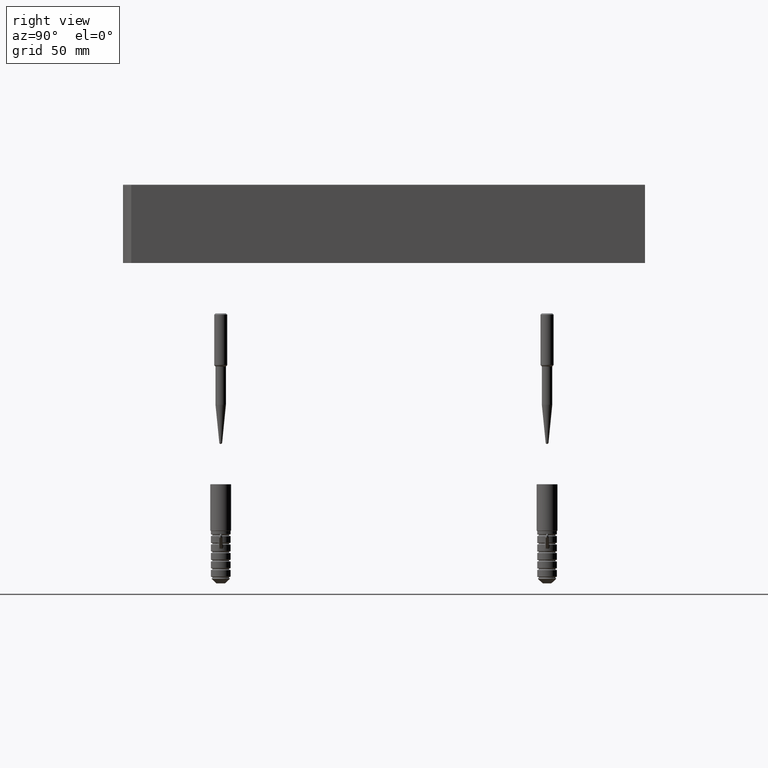
[diagram: clean part render]
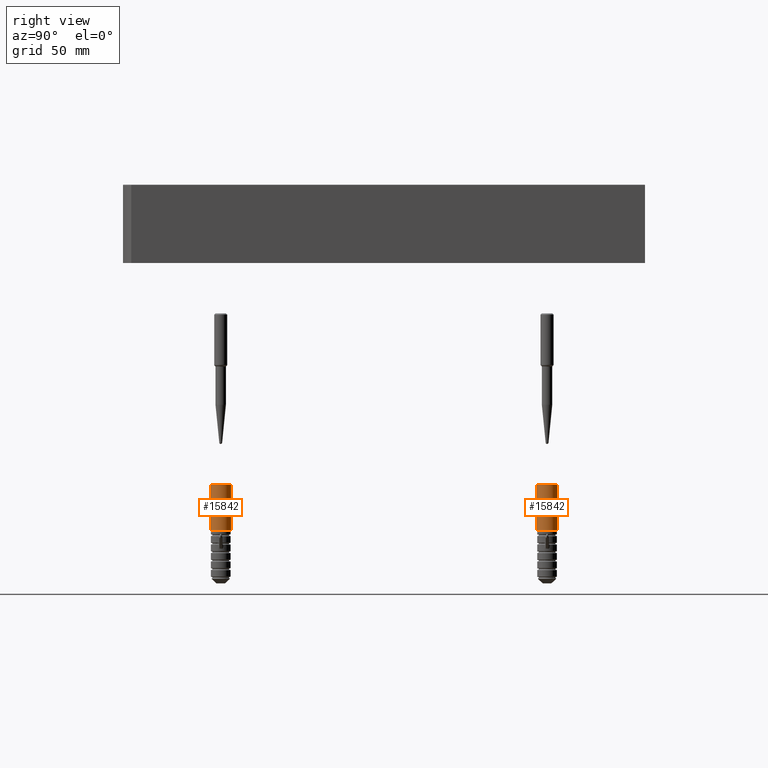
[diagram: same view with one multi-face feature highlighted, each face labeled with its STEP entity id]
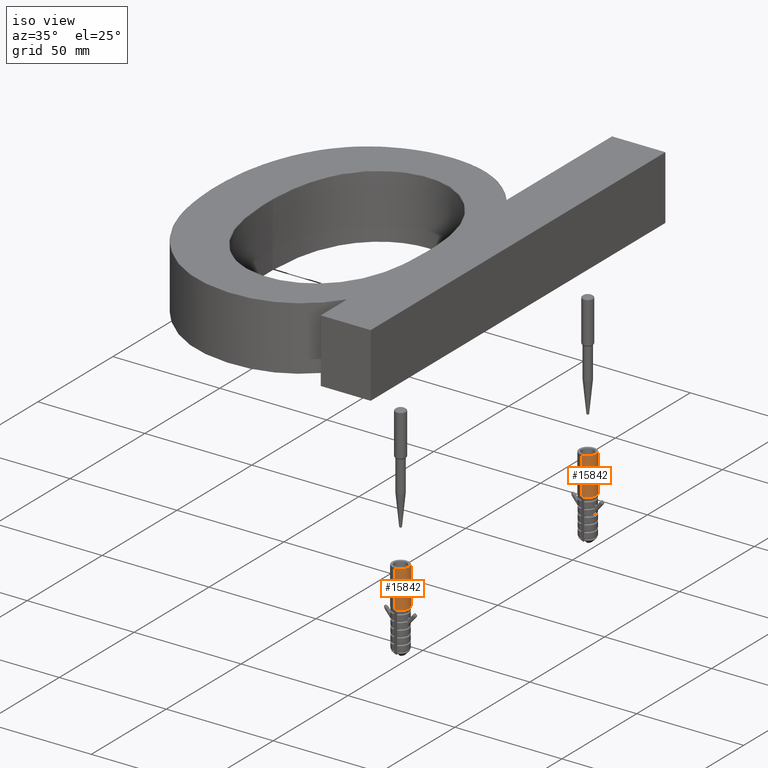
[diagram: same view with one multi-face feature highlighted, each face labeled with its STEP entity id]
A machine part, right view. The highlighted faces form ONE feature: a constant-radius fillet chain: 2 tangent blend faces with common blend radius 4 mm. The faces share edges in the B-rep.
A second angle (iso view) of the same feature is appended — it is thin or edge-on in the first view.
Their STEP definitions:
[1] entity #15842 (Cylinder):
#14 = CARTESIAN_POINT ( 'NONE',  ( 4.000000000000000000, 4.898587196589412800E-016, -38.00000000000000000 ) ) ;
#256 = CIRCLE ( 'NONE', #16029, 4.000000000000000000 ) ;
#1041 = EDGE_CURVE ( 'NONE', #29122, #21773, #5476, .T. ) ;
#1866 = EDGE_CURVE ( 'NONE', #19875, #27331, #23360, .T. ) ;
#2496 = VERTEX_POINT ( 'NONE', #28264 ) ;
#3447 = DIRECTION ( 'NONE',  ( -0.0000000000000000000, -0.0000000000000000000, -1.000000000000000000 ) ) ;
#3753 = ORIENTED_EDGE ( 'NONE', *, *, #3777, .F. ) ;
#3777 = EDGE_CURVE ( 'NONE', #2496, #19875, #26778, .T. ) ;
#4207 = ORIENTED_EDGE ( 'NONE', *, *, #23073, .T. ) ;
#4613 = CARTESIAN_POINT ( 'NONE',  ( 0.0000000000000000000, 0.0000000000000000000, -17.80000000000000100 ) ) ;
#4688 = CARTESIAN_POINT ( 'NONE',  ( 3.879513447468139200, 0.9743589743589745600, -17.80000000000000100 ) ) ;
#4702 = DIRECTION ( 'NONE',  ( -0.0000000000000000000, -0.0000000000000000000, -1.000000000000000000 ) ) ;
#4907 = DIRECTION ( 'NONE',  ( -0.0000000000000000000, -0.0000000000000000000, -1.000000000000000000 ) ) ;
#4951 = EDGE_CURVE ( 'NONE', #20730, #2496, #256, .T. ) ;
#4993 = DIRECTION ( 'NONE',  ( 1.000000000000000000, 0.0000000000000000000, 0.0000000000000000000 ) ) ;
#5161 = ORIENTED_EDGE ( 'NONE', *, *, #1866, .F. ) ;
#5476 = CIRCLE ( 'NONE', #20674, 4.000000000000000000 ) ;
#6446 = ORIENTED_EDGE ( 'NONE', *, *, #1041, .T. ) ;
#6591 = AXIS2_PLACEMENT_3D ( 'NONE', #27411, #4907, #20622 ) ;
#6996 = DIRECTION ( 'NONE',  ( -1.000000000000000000, 0.0000000000000000000, 0.0000000000000000000 ) ) ;
#7376 = CARTESIAN_POINT ( 'NONE',  ( 0.0000000000000000000, 0.0000000000000000000, -17.80000000000000100 ) ) ;
#8018 = CARTESIAN_POINT ( 'NONE',  ( -4.000000000000000000, 0.0000000000000000000, -38.00000000000000000 ) ) ;
#8551 = AXIS2_PLACEMENT_3D ( 'NONE', #27659, #25477, #16548 ) ;
#10162 = VECTOR ( 'NONE', #3447, 1000.000000000000000 ) ;
#12024 = VECTOR ( 'NONE', #4702, 1000.000000000000000 ) ;
#13160 = ORIENTED_EDGE ( 'NONE', *, *, #4951, .F. ) ;
#14833 = LINE ( 'NONE', #14, #12024 ) ;
#14934 = CARTESIAN_POINT ( 'NONE',  ( 4.000000000000000000, 4.898587196589412800E-016, -0.1999999999999987900 ) ) ;
#15616 = DIRECTION ( 'NONE',  ( -1.000000000000000000, 0.0000000000000000000, 0.0000000000000000000 ) ) ;
#15842 = ADVANCED_FACE ( 'NONE', ( #28040 ), #16748, .T. ) ;
#16029 = AXIS2_PLACEMENT_3D ( 'NONE', #4613, #18085, #15616 ) ;
#16548 = DIRECTION ( 'NONE',  ( -1.000000000000000000, 0.0000000000000000000, 0.0000000000000000000 ) ) ;
#16590 = DIRECTION ( 'NONE',  ( -0.0000000000000000000, -0.0000000000000000000, -1.000000000000000000 ) ) ;
#16748 = CYLINDRICAL_SURFACE ( 'NONE', #8551, 4.000000000000000000 ) ;
#18085 = DIRECTION ( 'NONE',  ( -0.0000000000000000000, -0.0000000000000000000, -1.000000000000000000 ) ) ;
#19190 = EDGE_CURVE ( 'NONE', #29122, #20730, #25990, .T. ) ;
#19512 = CARTESIAN_POINT ( 'NONE',  ( -4.000000000000000000, 0.0000000000000000000, -0.1999999999999987900 ) ) ;
#19875 = VERTEX_POINT ( 'NONE', #4688 ) ;
#20622 = DIRECTION ( 'NONE',  ( -1.000000000000000000, 0.0000000000000000000, 0.0000000000000000000 ) ) ;
#20674 = AXIS2_PLACEMENT_3D ( 'NONE', #25232, #16590, #4993 ) ;
#20730 = VERTEX_POINT ( 'NONE', #26556 ) ;
#21773 = VERTEX_POINT ( 'NONE', #14934 ) ;
#23073 = EDGE_CURVE ( 'NONE', #21773, #27331, #14833, .T. ) ;
#23360 = CIRCLE ( 'NONE', #26156, 4.000000000000000000 ) ;
#23762 = CARTESIAN_POINT ( 'NONE',  ( 4.000000000000000000, 4.898587196589412800E-016, -17.80000000000000100 ) ) ;
#25232 = CARTESIAN_POINT ( 'NONE',  ( 0.0000000000000000000, 0.0000000000000000000, -0.1999999999999987900 ) ) ;
#25477 = DIRECTION ( 'NONE',  ( -0.0000000000000000000, -0.0000000000000000000, -1.000000000000000000 ) ) ;
#25990 = LINE ( 'NONE', #8018, #10162 ) ;
#26156 = AXIS2_PLACEMENT_3D ( 'NONE', #7376, #27539, #6996 ) ;
#26200 = ORIENTED_EDGE ( 'NONE', *, *, #19190, .F. ) ;
#26556 = CARTESIAN_POINT ( 'NONE',  ( -4.000000000000000000, 0.0000000000000000000, -17.80000000000000100 ) ) ;
#26778 = CIRCLE ( 'NONE', #6591, 4.000000000000000000 ) ;
#27226 = EDGE_LOOP ( 'NONE', ( #6446, #4207, #5161, #3753, #13160, #26200 ) ) ;
#27331 = VERTEX_POINT ( 'NONE', #23762 ) ;
#27411 = CARTESIAN_POINT ( 'NONE',  ( 0.0000000000000000000, 0.0000000000000000000, -17.80000000000000100 ) ) ;
#27539 = DIRECTION ( 'NONE',  ( -0.0000000000000000000, -0.0000000000000000000, -1.000000000000000000 ) ) ;
#27659 = CARTESIAN_POINT ( 'NONE',  ( 0.0000000000000000000, 0.0000000000000000000, -38.00000000000000000 ) ) ;
#28040 = FACE_OUTER_BOUND ( 'NONE', #27226, .T. ) ;
#28264 = CARTESIAN_POINT ( 'NONE',  ( -3.879513447468139600, 0.9743589743589747800, -17.80000000000000100 ) ) ;
#29122 = VERTEX_POINT ( 'NONE', #19512 ) ;
[2] entity #15842 (Cylinder):
#14 = CARTESIAN_POINT ( 'NONE',  ( 4.000000000000000000, 4.898587196589412800E-016, -38.00000000000000000 ) ) ;
#256 = CIRCLE ( 'NONE', #16029, 4.000000000000000000 ) ;
#1041 = EDGE_CURVE ( 'NONE', #29122, #21773, #5476, .T. ) ;
#1866 = EDGE_CURVE ( 'NONE', #19875, #27331, #23360, .T. ) ;
#2496 = VERTEX_POINT ( 'NONE', #28264 ) ;
#3447 = DIRECTION ( 'NONE',  ( -0.0000000000000000000, -0.0000000000000000000, -1.000000000000000000 ) ) ;
#3753 = ORIENTED_EDGE ( 'NONE', *, *, #3777, .F. ) ;
#3777 = EDGE_CURVE ( 'NONE', #2496, #19875, #26778, .T. ) ;
#4207 = ORIENTED_EDGE ( 'NONE', *, *, #23073, .T. ) ;
#4613 = CARTESIAN_POINT ( 'NONE',  ( 0.0000000000000000000, 0.0000000000000000000, -17.80000000000000100 ) ) ;
#4688 = CARTESIAN_POINT ( 'NONE',  ( 3.879513447468139200, 0.9743589743589745600, -17.80000000000000100 ) ) ;
#4702 = DIRECTION ( 'NONE',  ( -0.0000000000000000000, -0.0000000000000000000, -1.000000000000000000 ) ) ;
#4907 = DIRECTION ( 'NONE',  ( -0.0000000000000000000, -0.0000000000000000000, -1.000000000000000000 ) ) ;
#4951 = EDGE_CURVE ( 'NONE', #20730, #2496, #256, .T. ) ;
#4993 = DIRECTION ( 'NONE',  ( 1.000000000000000000, 0.0000000000000000000, 0.0000000000000000000 ) ) ;
#5161 = ORIENTED_EDGE ( 'NONE', *, *, #1866, .F. ) ;
#5476 = CIRCLE ( 'NONE', #20674, 4.000000000000000000 ) ;
#6446 = ORIENTED_EDGE ( 'NONE', *, *, #1041, .T. ) ;
#6591 = AXIS2_PLACEMENT_3D ( 'NONE', #27411, #4907, #20622 ) ;
#6996 = DIRECTION ( 'NONE',  ( -1.000000000000000000, 0.0000000000000000000, 0.0000000000000000000 ) ) ;
#7376 = CARTESIAN_POINT ( 'NONE',  ( 0.0000000000000000000, 0.0000000000000000000, -17.80000000000000100 ) ) ;
#8018 = CARTESIAN_POINT ( 'NONE',  ( -4.000000000000000000, 0.0000000000000000000, -38.00000000000000000 ) ) ;
#8551 = AXIS2_PLACEMENT_3D ( 'NONE', #27659, #25477, #16548 ) ;
#10162 = VECTOR ( 'NONE', #3447, 1000.000000000000000 ) ;
#12024 = VECTOR ( 'NONE', #4702, 1000.000000000000000 ) ;
#13160 = ORIENTED_EDGE ( 'NONE', *, *, #4951, .F. ) ;
#14833 = LINE ( 'NONE', #14, #12024 ) ;
#14934 = CARTESIAN_POINT ( 'NONE',  ( 4.000000000000000000, 4.898587196589412800E-016, -0.1999999999999987900 ) ) ;
#15616 = DIRECTION ( 'NONE',  ( -1.000000000000000000, 0.0000000000000000000, 0.0000000000000000000 ) ) ;
#15842 = ADVANCED_FACE ( 'NONE', ( #28040 ), #16748, .T. ) ;
#16029 = AXIS2_PLACEMENT_3D ( 'NONE', #4613, #18085, #15616 ) ;
#16548 = DIRECTION ( 'NONE',  ( -1.000000000000000000, 0.0000000000000000000, 0.0000000000000000000 ) ) ;
#16590 = DIRECTION ( 'NONE',  ( -0.0000000000000000000, -0.0000000000000000000, -1.000000000000000000 ) ) ;
#16748 = CYLINDRICAL_SURFACE ( 'NONE', #8551, 4.000000000000000000 ) ;
#18085 = DIRECTION ( 'NONE',  ( -0.0000000000000000000, -0.0000000000000000000, -1.000000000000000000 ) ) ;
#19190 = EDGE_CURVE ( 'NONE', #29122, #20730, #25990, .T. ) ;
#19512 = CARTESIAN_POINT ( 'NONE',  ( -4.000000000000000000, 0.0000000000000000000, -0.1999999999999987900 ) ) ;
#19875 = VERTEX_POINT ( 'NONE', #4688 ) ;
#20622 = DIRECTION ( 'NONE',  ( -1.000000000000000000, 0.0000000000000000000, 0.0000000000000000000 ) ) ;
#20674 = AXIS2_PLACEMENT_3D ( 'NONE', #25232, #16590, #4993 ) ;
#20730 = VERTEX_POINT ( 'NONE', #26556 ) ;
#21773 = VERTEX_POINT ( 'NONE', #14934 ) ;
#23073 = EDGE_CURVE ( 'NONE', #21773, #27331, #14833, .T. ) ;
#23360 = CIRCLE ( 'NONE', #26156, 4.000000000000000000 ) ;
#23762 = CARTESIAN_POINT ( 'NONE',  ( 4.000000000000000000, 4.898587196589412800E-016, -17.80000000000000100 ) ) ;
#25232 = CARTESIAN_POINT ( 'NONE',  ( 0.0000000000000000000, 0.0000000000000000000, -0.1999999999999987900 ) ) ;
#25477 = DIRECTION ( 'NONE',  ( -0.0000000000000000000, -0.0000000000000000000, -1.000000000000000000 ) ) ;
#25990 = LINE ( 'NONE', #8018, #10162 ) ;
#26156 = AXIS2_PLACEMENT_3D ( 'NONE', #7376, #27539, #6996 ) ;
#26200 = ORIENTED_EDGE ( 'NONE', *, *, #19190, .F. ) ;
#26556 = CARTESIAN_POINT ( 'NONE',  ( -4.000000000000000000, 0.0000000000000000000, -17.80000000000000100 ) ) ;
#26778 = CIRCLE ( 'NONE', #6591, 4.000000000000000000 ) ;
#27226 = EDGE_LOOP ( 'NONE', ( #6446, #4207, #5161, #3753, #13160, #26200 ) ) ;
#27331 = VERTEX_POINT ( 'NONE', #23762 ) ;
#27411 = CARTESIAN_POINT ( 'NONE',  ( 0.0000000000000000000, 0.0000000000000000000, -17.80000000000000100 ) ) ;
#27539 = DIRECTION ( 'NONE',  ( -0.0000000000000000000, -0.0000000000000000000, -1.000000000000000000 ) ) ;
#27659 = CARTESIAN_POINT ( 'NONE',  ( 0.0000000000000000000, 0.0000000000000000000, -38.00000000000000000 ) ) ;
#28040 = FACE_OUTER_BOUND ( 'NONE', #27226, .T. ) ;
#28264 = CARTESIAN_POINT ( 'NONE',  ( -3.879513447468139600, 0.9743589743589747800, -17.80000000000000100 ) ) ;
#29122 = VERTEX_POINT ( 'NONE', #19512 ) ;